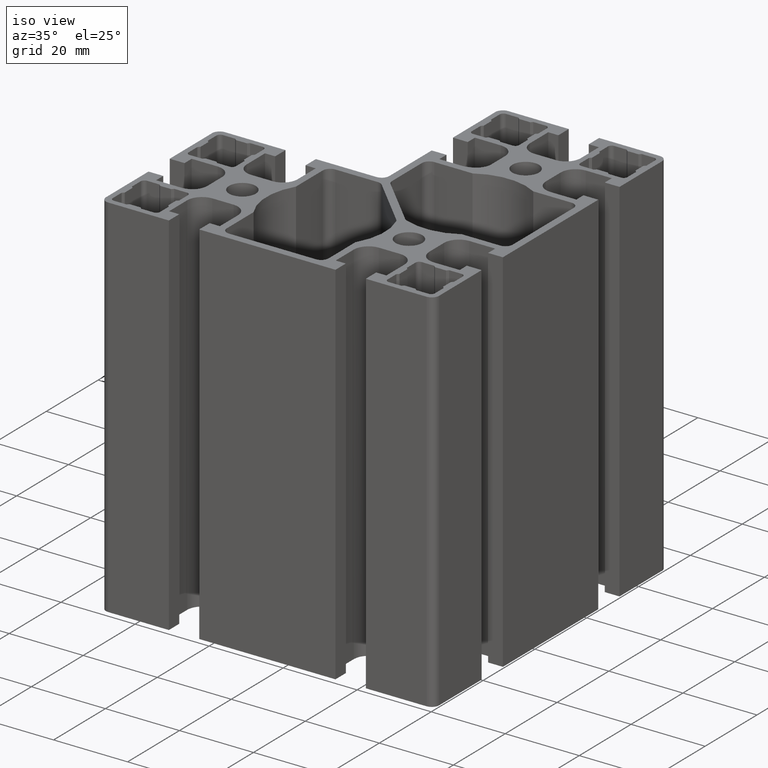
[diagram: clean part render]
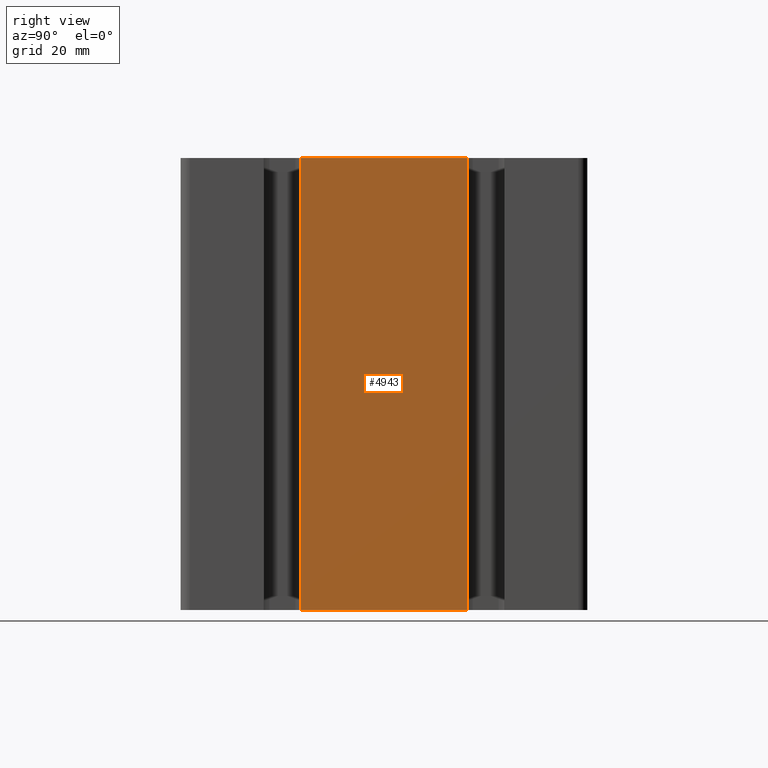
[diagram: tour spotlight — one face highlighted and labeled with its STEP entity id]
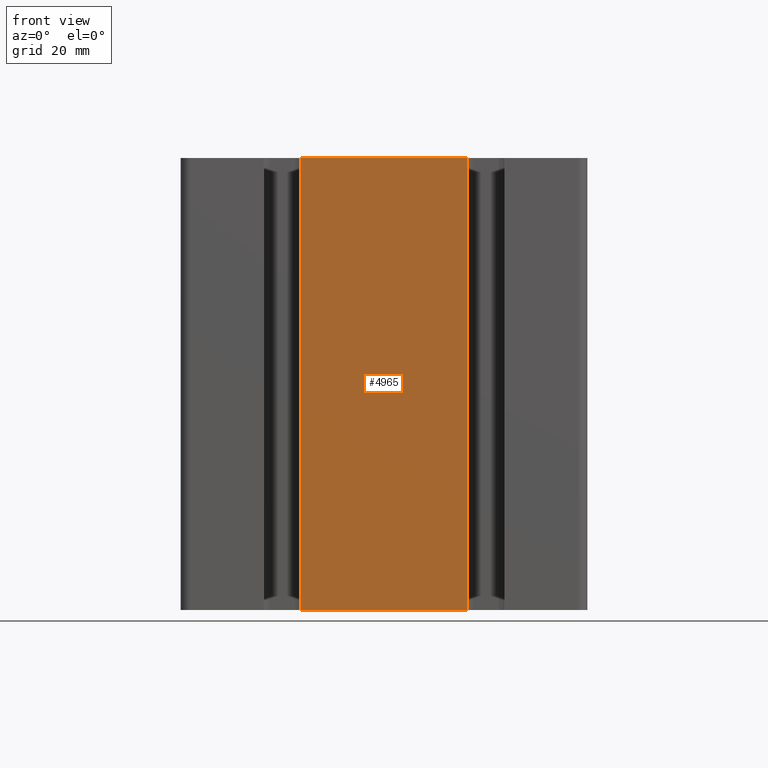
[diagram: tour spotlight — one face highlighted and labeled with its STEP entity id]
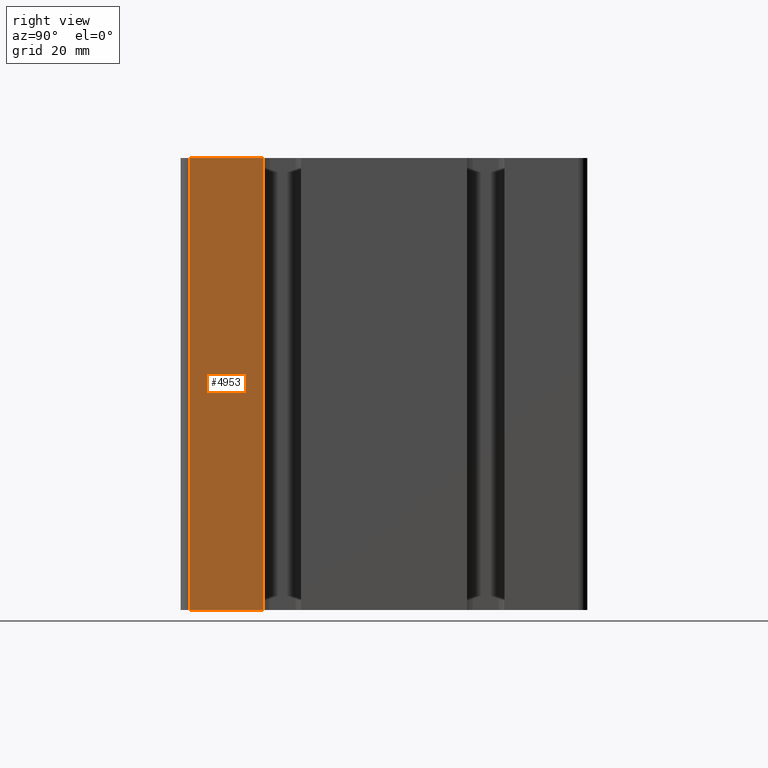
[diagram: tour spotlight — one face highlighted and labeled with its STEP entity id]
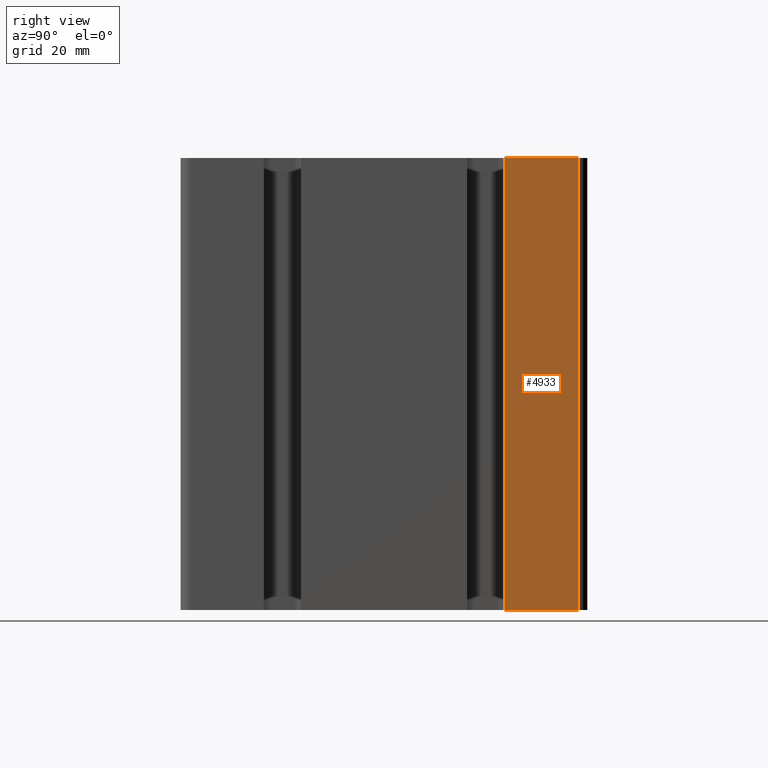
[diagram: tour spotlight — one face highlighted and labeled with its STEP entity id]
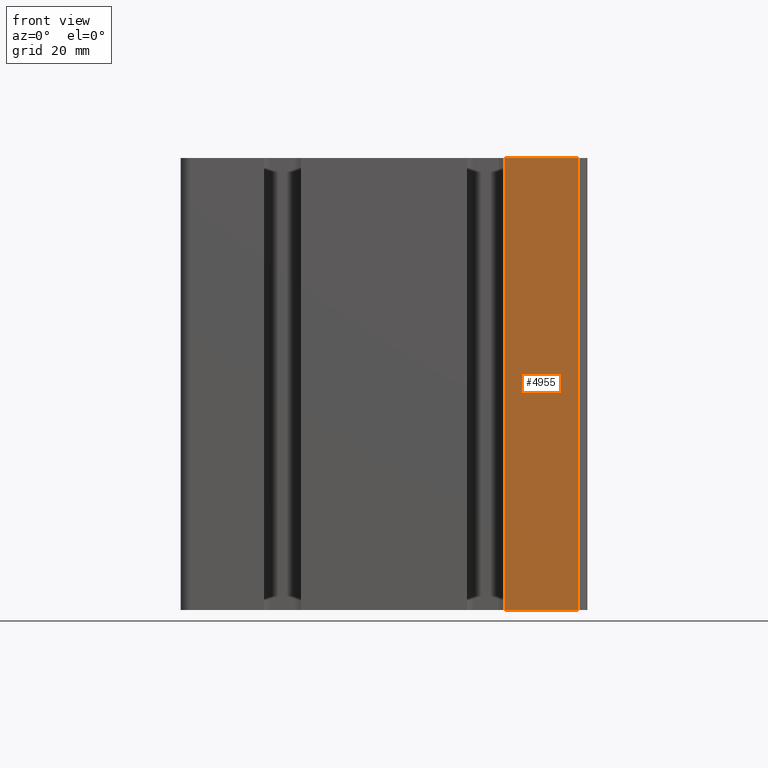
[diagram: tour spotlight — one face highlighted and labeled with its STEP entity id]
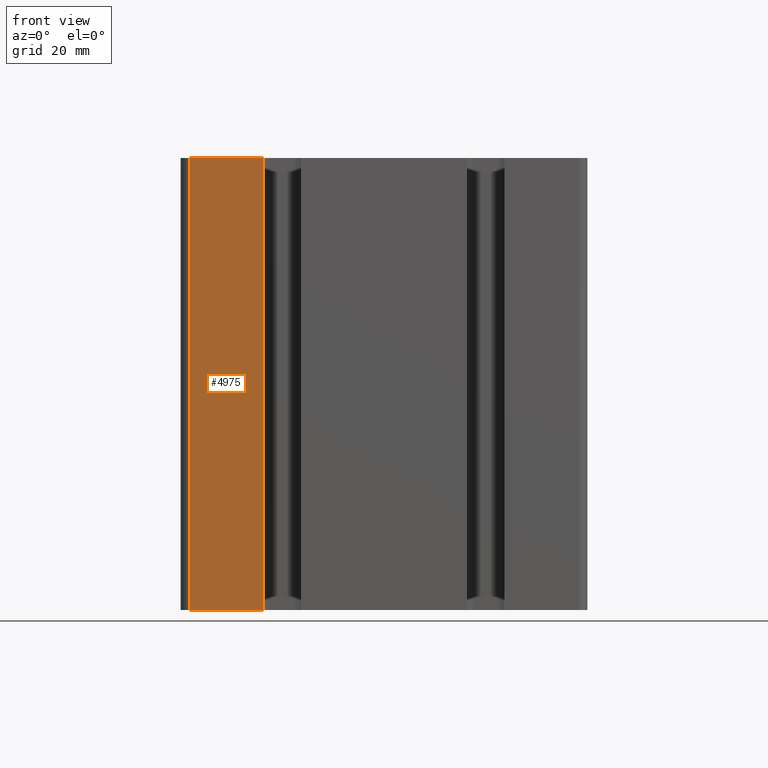
[diagram: tour spotlight — one face highlighted and labeled with its STEP entity id]
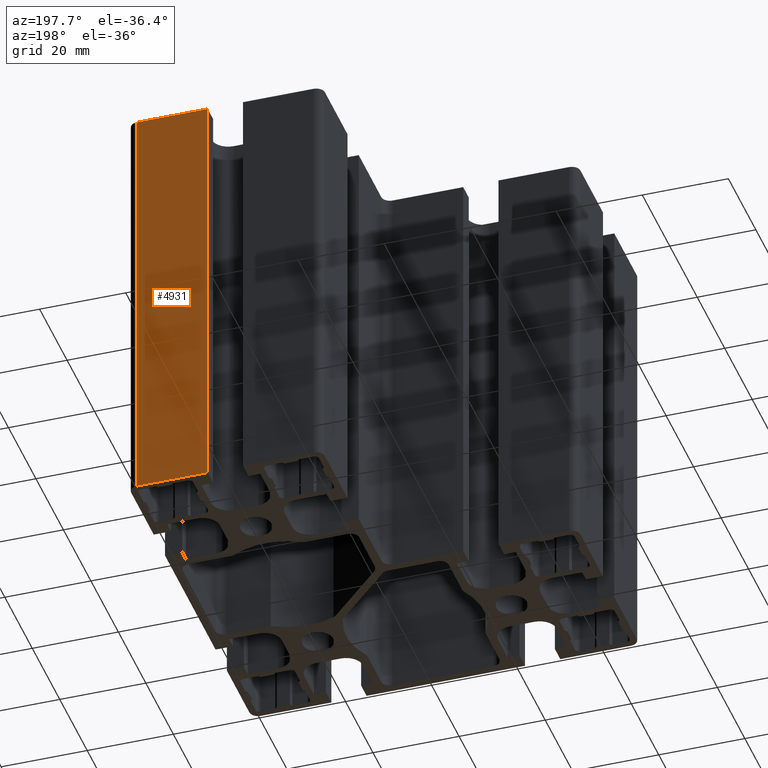
[diagram: tour spotlight — one face highlighted and labeled with its STEP entity id]
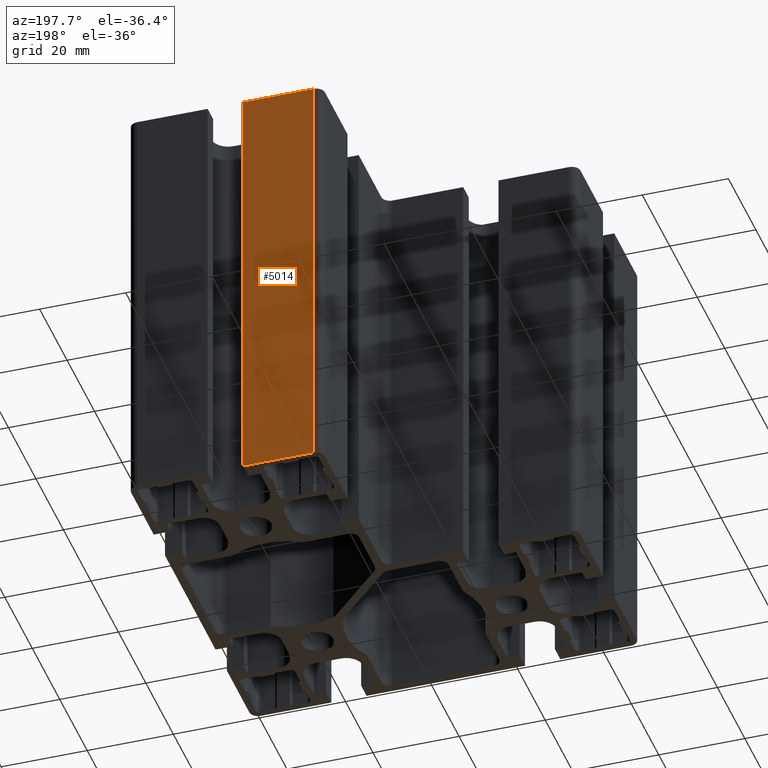
[diagram: tour spotlight — one face highlighted and labeled with its STEP entity id]
A machine part: a face-by-face anatomy tour. The part has 244 B-rep faces; the first image is the clean iso view, then the 8 largest visible faces are spotlighted one at a time (largest first), each with its STEP entity span.

Face 1 — right view, entity #4943. In plain terms, the highlighted planar face has unit normal (1, 0, 0).
Definition (entity closure, byte-faithful):
#389=FACE_OUTER_BOUND('',#646,.T.);
#646=EDGE_LOOP('',(#4058,#4059,#4060,#4061));
#1116=LINE('',#7654,#1719);
#1206=LINE('',#7879,#1809);
#1207=LINE('',#7882,#1810);
#1208=LINE('',#7883,#1811);
#1719=VECTOR('',#6229,36.8);
#1809=VECTOR('',#6407,100.);
#1810=VECTOR('',#6410,36.8);
#1811=VECTOR('',#6411,100.);
#2255=VERTEX_POINT('',#7651);
#2256=VERTEX_POINT('',#7653);
#2347=VERTEX_POINT('',#7877);
#2348=VERTEX_POINT('',#7881);
#2885=EDGE_CURVE('',#2255,#2256,#1116,.T.);
#2998=EDGE_CURVE('',#2255,#2347,#1206,.T.);
#2999=EDGE_CURVE('',#2348,#2347,#1207,.T.);
#3000=EDGE_CURVE('',#2256,#2348,#1208,.T.);
#4058=ORIENTED_EDGE('',*,*,#2998,.T.);
#4059=ORIENTED_EDGE('',*,*,#2999,.F.);
#4060=ORIENTED_EDGE('',*,*,#3000,.F.);
#4061=ORIENTED_EDGE('',*,*,#2885,.F.);
#4717=PLANE('',#5291);
#4943=ADVANCED_FACE('',(#389),#4717,.T.);
#5291=AXIS2_PLACEMENT_3D('',#7880,#6408,#6409);
#6229=DIRECTION('',(0.,-1.,0.));
#6407=DIRECTION('',(0.,0.,1.));
#6408=DIRECTION('center_axis',(1.,0.,0.));
#6409=DIRECTION('ref_axis',(0.,1.,0.));
#6410=DIRECTION('',(0.,1.,0.));
#6411=DIRECTION('',(0.,0.,1.));
#7651=CARTESIAN_POINT('',(22.5,40.9000000000015,-50.));
#7653=CARTESIAN_POINT('',(22.5,4.10000000000158,-50.));
#7654=CARTESIAN_POINT('',(22.5,4.10000000000158,-50.));
#7877=CARTESIAN_POINT('',(22.5,40.9000000000015,50.));
#7879=CARTESIAN_POINT('',(22.5,40.9000000000015,0.));
#7880=CARTESIAN_POINT('Origin',(22.5,4.10000000000158,0.));
#7881=CARTESIAN_POINT('',(22.5,4.10000000000158,50.));
#7882=CARTESIAN_POINT('',(22.5,4.10000000000158,50.));
#7883=CARTESIAN_POINT('',(22.5,4.10000000000158,0.));

Face 2 — front view, entity #4965. In plain terms, the highlighted planar face has unit normal (-0, -1, 0).
Definition (entity closure, byte-faithful):
#411=FACE_OUTER_BOUND('',#668,.T.);
#668=EDGE_LOOP('',(#4146,#4147,#4148,#4149));
#1133=LINE('',#7698,#1736);
#1245=LINE('',#7967,#1848);
#1246=LINE('',#7970,#1849);
#1247=LINE('',#7971,#1850);
#1736=VECTOR('',#6256,36.8000000000001);
#1848=VECTOR('',#6500,100.);
#1849=VECTOR('',#6503,36.8000000000001);
#1850=VECTOR('',#6504,100.);
#2277=VERTEX_POINT('',#7695);
#2278=VERTEX_POINT('',#7697);
#2369=VERTEX_POINT('',#7965);
#2370=VERTEX_POINT('',#7969);
#2907=EDGE_CURVE('',#2277,#2278,#1133,.T.);
#3042=EDGE_CURVE('',#2277,#2369,#1245,.T.);
#3043=EDGE_CURVE('',#2370,#2369,#1246,.T.);
#3044=EDGE_CURVE('',#2278,#2370,#1247,.T.);
#4146=ORIENTED_EDGE('',*,*,#3042,.T.);
#4147=ORIENTED_EDGE('',*,*,#3043,.F.);
#4148=ORIENTED_EDGE('',*,*,#3044,.F.);
#4149=ORIENTED_EDGE('',*,*,#2907,.F.);
#4734=PLANE('',#5318);
#4965=ADVANCED_FACE('',(#411),#4734,.T.);
#5318=AXIS2_PLACEMENT_3D('',#7968,#6501,#6502);
#6256=DIRECTION('',(-1.,2.41352831440251E-16,0.));
#6500=DIRECTION('',(0.,0.,1.));
#6501=DIRECTION('center_axis',(-2.41352831440251E-16,-1.,0.));
#6502=DIRECTION('ref_axis',(1.,-3.5527136788005E-16,0.));
#6503=DIRECTION('',(1.,-2.41352831440251E-16,0.));
#6504=DIRECTION('',(0.,0.,1.));
#7695=CARTESIAN_POINT('',(-4.10000000000003,-22.4999999999983,-50.));
#7697=CARTESIAN_POINT('',(-40.9000000000001,-22.4999999999983,-50.));
#7698=CARTESIAN_POINT('',(-40.9000000000001,-22.4999999999983,-50.));
#7965=CARTESIAN_POINT('',(-4.10000000000003,-22.4999999999983,50.));
#7967=CARTESIAN_POINT('',(-4.10000000000003,-22.4999999999983,0.));
#7968=CARTESIAN_POINT('Origin',(-40.9000000000001,-22.4999999999983,0.));
#7969=CARTESIAN_POINT('',(-40.9000000000001,-22.4999999999983,50.));
#7970=CARTESIAN_POINT('',(-40.9000000000001,-22.4999999999983,50.));
#7971=CARTESIAN_POINT('',(-40.9000000000001,-22.4999999999983,0.));

Face 3 — right view, entity #4953. In plain terms, the highlighted planar face has unit normal (1, 0, 0).
Definition (entity closure, byte-faithful):
#399=FACE_OUTER_BOUND('',#656,.T.);
#656=EDGE_LOOP('',(#4098,#4099,#4100,#4101));
#1124=LINE('',#7674,#1727);
#1224=LINE('',#7919,#1827);
#1225=LINE('',#7922,#1828);
#1226=LINE('',#7923,#1829);
#1727=VECTOR('',#6241,16.4);
#1827=VECTOR('',#6449,100.);
#1828=VECTOR('',#6452,16.4);
#1829=VECTOR('',#6453,100.);
#2265=VERTEX_POINT('',#7671);
#2266=VERTEX_POINT('',#7673);
#2357=VERTEX_POINT('',#7917);
#2358=VERTEX_POINT('',#7921);
#2895=EDGE_CURVE('',#2265,#2266,#1124,.T.);
#3018=EDGE_CURVE('',#2265,#2357,#1224,.T.);
#3019=EDGE_CURVE('',#2358,#2357,#1225,.T.);
#3020=EDGE_CURVE('',#2266,#2358,#1226,.T.);
#4098=ORIENTED_EDGE('',*,*,#3018,.T.);
#4099=ORIENTED_EDGE('',*,*,#3019,.F.);
#4100=ORIENTED_EDGE('',*,*,#3020,.F.);
#4101=ORIENTED_EDGE('',*,*,#2895,.F.);
#4725=PLANE('',#5303);
#4953=ADVANCED_FACE('',(#399),#4725,.T.);
#5303=AXIS2_PLACEMENT_3D('',#7920,#6450,#6451);
#6241=DIRECTION('',(0.,-1.,0.));
#6449=DIRECTION('',(0.,0.,1.));
#6450=DIRECTION('center_axis',(1.,0.,0.));
#6451=DIRECTION('ref_axis',(0.,1.,0.));
#6452=DIRECTION('',(0.,1.,0.));
#6453=DIRECTION('',(0.,0.,1.));
#7671=CARTESIAN_POINT('',(22.5,-4.09999999999835,-50.));
#7673=CARTESIAN_POINT('',(22.5,-20.4999999999983,-50.));
#7674=CARTESIAN_POINT('',(22.5,-20.4999999999983,-50.));
#7917=CARTESIAN_POINT('',(22.5,-4.09999999999835,50.));
#7919=CARTESIAN_POINT('',(22.5,-4.09999999999835,0.));
#7920=CARTESIAN_POINT('Origin',(22.5,-20.4999999999983,0.));
#7921=CARTESIAN_POINT('',(22.5,-20.4999999999983,50.));
#7922=CARTESIAN_POINT('',(22.5,-20.4999999999983,50.));
#7923=CARTESIAN_POINT('',(22.5,-20.4999999999983,0.));

Face 4 — right view, entity #4933. In plain terms, the highlighted planar face has unit normal (1, -0, 0).
Definition (entity closure, byte-faithful):
#379=FACE_OUTER_BOUND('',#636,.T.);
#636=EDGE_LOOP('',(#4018,#4019,#4020,#4021));
#1108=LINE('',#7634,#1711);
#1188=LINE('',#7839,#1791);
#1189=LINE('',#7842,#1792);
#1190=LINE('',#7843,#1793);
#1711=VECTOR('',#6217,16.4);
#1791=VECTOR('',#6365,100.);
#1792=VECTOR('',#6368,16.4);
#1793=VECTOR('',#6369,100.);
#2245=VERTEX_POINT('',#7631);
#2246=VERTEX_POINT('',#7633);
#2337=VERTEX_POINT('',#7837);
#2338=VERTEX_POINT('',#7841);
#2875=EDGE_CURVE('',#2245,#2246,#1108,.T.);
#2978=EDGE_CURVE('',#2245,#2337,#1188,.T.);
#2979=EDGE_CURVE('',#2338,#2337,#1189,.T.);
#2980=EDGE_CURVE('',#2246,#2338,#1190,.T.);
#4018=ORIENTED_EDGE('',*,*,#2978,.T.);
#4019=ORIENTED_EDGE('',*,*,#2979,.F.);
#4020=ORIENTED_EDGE('',*,*,#2980,.F.);
#4021=ORIENTED_EDGE('',*,*,#2875,.F.);
#4709=PLANE('',#5279);
#4933=ADVANCED_FACE('',(#379),#4709,.T.);
#5279=AXIS2_PLACEMENT_3D('',#7840,#6366,#6367);
#6217=DIRECTION('',(-1.08314441426844E-15,-1.,0.));
#6365=DIRECTION('',(0.,0.,1.));
#6366=DIRECTION('center_axis',(1.,-1.08314441426844E-15,0.));
#6367=DIRECTION('ref_axis',(1.06581410364015E-15,1.,0.));
#6368=DIRECTION('',(1.08314441426844E-15,1.,0.));
#6369=DIRECTION('',(0.,0.,1.));
#7631=CARTESIAN_POINT('',(22.5,65.5000000000015,-50.));
#7633=CARTESIAN_POINT('',(22.5,49.1000000000015,-50.));
#7634=CARTESIAN_POINT('',(22.5,49.1000000000015,-50.));
#7837=CARTESIAN_POINT('',(22.5,65.5000000000015,50.));
#7839=CARTESIAN_POINT('',(22.5,65.5000000000015,0.));
#7840=CARTESIAN_POINT('Origin',(22.5,49.1000000000015,0.));
#7841=CARTESIAN_POINT('',(22.5,49.1000000000015,50.));
#7842=CARTESIAN_POINT('',(22.5,49.1000000000015,50.));
#7843=CARTESIAN_POINT('',(22.5,49.1000000000015,0.));

Face 5 — front view, entity #4955. In plain terms, the highlighted planar face has unit normal (0, -1, 0).
Definition (entity closure, byte-faithful):
#401=FACE_OUTER_BOUND('',#658,.T.);
#658=EDGE_LOOP('',(#4106,#4107,#4108,#4109));
#1125=LINE('',#7678,#1728);
#1227=LINE('',#7927,#1830);
#1228=LINE('',#7930,#1831);
#1229=LINE('',#7931,#1832);
#1728=VECTOR('',#6244,16.4000000000001);
#1830=VECTOR('',#6458,100.);
#1831=VECTOR('',#6461,16.4000000000001);
#1832=VECTOR('',#6462,100.);
#2267=VERTEX_POINT('',#7675);
#2268=VERTEX_POINT('',#7677);
#2359=VERTEX_POINT('',#7925);
#2360=VERTEX_POINT('',#7929);
#2897=EDGE_CURVE('',#2267,#2268,#1125,.T.);
#3022=EDGE_CURVE('',#2267,#2359,#1227,.T.);
#3023=EDGE_CURVE('',#2360,#2359,#1228,.T.);
#3024=EDGE_CURVE('',#2268,#2360,#1229,.T.);
#4106=ORIENTED_EDGE('',*,*,#3022,.T.);
#4107=ORIENTED_EDGE('',*,*,#3023,.F.);
#4108=ORIENTED_EDGE('',*,*,#3024,.F.);
#4109=ORIENTED_EDGE('',*,*,#2897,.F.);
#4726=PLANE('',#5306);
#4955=ADVANCED_FACE('',(#401),#4726,.T.);
#5306=AXIS2_PLACEMENT_3D('',#7928,#6459,#6460);
#6244=DIRECTION('',(-1.,0.,0.));
#6458=DIRECTION('',(0.,0.,1.));
#6459=DIRECTION('center_axis',(0.,-1.,0.));
#6460=DIRECTION('ref_axis',(1.,0.,0.));
#6461=DIRECTION('',(1.,0.,0.));
#6462=DIRECTION('',(0.,0.,1.));
#7675=CARTESIAN_POINT('',(20.5,-22.4999999999983,-50.));
#7677=CARTESIAN_POINT('',(4.0999999999999,-22.4999999999983,-50.));
#7678=CARTESIAN_POINT('',(4.0999999999999,-22.4999999999983,-50.));
#7925=CARTESIAN_POINT('',(20.5,-22.4999999999983,50.));
#7927=CARTESIAN_POINT('',(20.5,-22.4999999999983,0.));
#7928=CARTESIAN_POINT('Origin',(4.0999999999999,-22.4999999999983,0.));
#7929=CARTESIAN_POINT('',(4.0999999999999,-22.4999999999983,50.));
#7930=CARTESIAN_POINT('',(4.0999999999999,-22.4999999999983,50.));
#7931=CARTESIAN_POINT('',(4.0999999999999,-22.4999999999983,0.));

Face 6 — front view, entity #4975. In plain terms, the highlighted planar face has unit normal (0, -1, 0).
Definition (entity closure, byte-faithful):
#421=FACE_OUTER_BOUND('',#678,.T.);
#678=EDGE_LOOP('',(#4186,#4187,#4188,#4189));
#1141=LINE('',#7718,#1744);
#1263=LINE('',#8007,#1866);
#1264=LINE('',#8010,#1867);
#1265=LINE('',#8011,#1868);
#1744=VECTOR('',#6268,16.4);
#1866=VECTOR('',#6542,100.);
#1867=VECTOR('',#6545,16.4);
#1868=VECTOR('',#6546,100.);
#2287=VERTEX_POINT('',#7715);
#2288=VERTEX_POINT('',#7717);
#2379=VERTEX_POINT('',#8005);
#2380=VERTEX_POINT('',#8009);
#2917=EDGE_CURVE('',#2287,#2288,#1141,.T.);
#3062=EDGE_CURVE('',#2287,#2379,#1263,.T.);
#3063=EDGE_CURVE('',#2380,#2379,#1264,.T.);
#3064=EDGE_CURVE('',#2288,#2380,#1265,.T.);
#4186=ORIENTED_EDGE('',*,*,#3062,.T.);
#4187=ORIENTED_EDGE('',*,*,#3063,.F.);
#4188=ORIENTED_EDGE('',*,*,#3064,.F.);
#4189=ORIENTED_EDGE('',*,*,#2917,.F.);
#4742=PLANE('',#5330);
#4975=ADVANCED_FACE('',(#421),#4742,.T.);
#5330=AXIS2_PLACEMENT_3D('',#8008,#6543,#6544);
#6268=DIRECTION('',(-1.,-2.70786103567112E-16,0.));
#6542=DIRECTION('',(0.,0.,1.));
#6543=DIRECTION('center_axis',(2.70786103567112E-16,-1.,0.));
#6544=DIRECTION('ref_axis',(1.,3.5527136788005E-16,0.));
#6545=DIRECTION('',(1.,2.70786103567112E-16,0.));
#6546=DIRECTION('',(0.,0.,1.));
#7715=CARTESIAN_POINT('',(-49.1,-22.4999999999983,-50.));
#7717=CARTESIAN_POINT('',(-65.5,-22.4999999999983,-50.));
#7718=CARTESIAN_POINT('',(-65.5,-22.4999999999983,-50.));
#8005=CARTESIAN_POINT('',(-49.1,-22.4999999999983,50.));
#8007=CARTESIAN_POINT('',(-49.1,-22.4999999999983,0.));
#8008=CARTESIAN_POINT('Origin',(-65.5,-22.4999999999983,0.));
#8009=CARTESIAN_POINT('',(-65.5,-22.4999999999983,50.));
#8010=CARTESIAN_POINT('',(-65.5,-22.4999999999983,50.));
#8011=CARTESIAN_POINT('',(-65.5,-22.4999999999983,0.));

Face 7 — auxiliary view, entity #4931. In plain terms, the highlighted planar face has unit normal (0, 1, 0).
Definition (entity closure, byte-faithful):
#377=FACE_OUTER_BOUND('',#634,.T.);
#634=EDGE_LOOP('',(#4010,#4011,#4012,#4013));
#1107=LINE('',#7630,#1710);
#1185=LINE('',#7831,#1788);
#1186=LINE('',#7834,#1789);
#1187=LINE('',#7835,#1790);
#1710=VECTOR('',#6214,16.4);
#1788=VECTOR('',#6356,100.);
#1789=VECTOR('',#6359,16.4);
#1790=VECTOR('',#6360,100.);
#2243=VERTEX_POINT('',#7627);
#2244=VERTEX_POINT('',#7629);
#2335=VERTEX_POINT('',#7829);
#2336=VERTEX_POINT('',#7833);
#2873=EDGE_CURVE('',#2243,#2244,#1107,.T.);
#2974=EDGE_CURVE('',#2243,#2335,#1185,.T.);
#2975=EDGE_CURVE('',#2336,#2335,#1186,.T.);
#2976=EDGE_CURVE('',#2244,#2336,#1187,.T.);
#4010=ORIENTED_EDGE('',*,*,#2974,.T.);
#4011=ORIENTED_EDGE('',*,*,#2975,.F.);
#4012=ORIENTED_EDGE('',*,*,#2976,.F.);
#4013=ORIENTED_EDGE('',*,*,#2873,.F.);
#4708=PLANE('',#5276);
#4931=ADVANCED_FACE('',(#377),#4708,.T.);
#5276=AXIS2_PLACEMENT_3D('',#7832,#6357,#6358);
#6214=DIRECTION('',(1.,0.,0.));
#6356=DIRECTION('',(0.,0.,1.));
#6357=DIRECTION('center_axis',(0.,1.,0.));
#6358=DIRECTION('ref_axis',(-1.,0.,0.));
#6359=DIRECTION('',(-1.,0.,0.));
#6360=DIRECTION('',(0.,0.,1.));
#7627=CARTESIAN_POINT('',(4.10000000000001,67.5000000000016,-50.));
#7629=CARTESIAN_POINT('',(20.5,67.5000000000016,-50.));
#7630=CARTESIAN_POINT('',(20.5,67.5000000000016,-50.));
#7829=CARTESIAN_POINT('',(4.10000000000001,67.5000000000016,50.));
#7831=CARTESIAN_POINT('',(4.10000000000001,67.5000000000016,0.));
#7832=CARTESIAN_POINT('Origin',(20.5,67.5000000000016,0.));
#7833=CARTESIAN_POINT('',(20.5,67.5000000000016,50.));
#7834=CARTESIAN_POINT('',(20.5,67.5000000000016,50.));
#7835=CARTESIAN_POINT('',(20.5,67.5000000000016,0.));

Face 8 — auxiliary view, entity #5014. In plain terms, the highlighted planar face has unit normal (0, 1, 0).
Definition (entity closure, byte-faithful):
#460=FACE_OUTER_BOUND('',#717,.T.);
#717=EDGE_LOOP('',(#4342,#4343,#4344,#4345));
#1099=LINE('',#7610,#1702);
#1169=LINE('',#7796,#1772);
#1330=LINE('',#8163,#1933);
#1331=LINE('',#8165,#1934);
#1702=VECTOR('',#6202,16.4000000000001);
#1772=VECTOR('',#6320,100.);
#1933=VECTOR('',#6709,100.);
#1934=VECTOR('',#6712,16.4000000000001);
#2233=VERTEX_POINT('',#7608);
#2234=VERTEX_POINT('',#7609);
#2326=VERTEX_POINT('',#7795);
#2418=VERTEX_POINT('',#8161);
#2863=EDGE_CURVE('',#2233,#2234,#1099,.T.);
#2956=EDGE_CURVE('',#2326,#2234,#1169,.T.);
#3140=EDGE_CURVE('',#2233,#2418,#1330,.T.);
#3141=EDGE_CURVE('',#2326,#2418,#1331,.T.);
#4342=ORIENTED_EDGE('',*,*,#3140,.T.);
#4343=ORIENTED_EDGE('',*,*,#3141,.F.);
#4344=ORIENTED_EDGE('',*,*,#2956,.T.);
#4345=ORIENTED_EDGE('',*,*,#2863,.F.);
#4770=PLANE('',#5380);
#5014=ADVANCED_FACE('',(#460),#4770,.T.);
#5380=AXIS2_PLACEMENT_3D('',#8164,#6710,#6711);
#6202=DIRECTION('',(1.,0.,0.));
#6320=DIRECTION('',(0.,0.,-1.));
#6709=DIRECTION('',(0.,0.,1.));
#6710=DIRECTION('center_axis',(0.,1.,0.));
#6711=DIRECTION('ref_axis',(-1.,0.,0.));
#6712=DIRECTION('',(-1.,0.,0.));
#7608=CARTESIAN_POINT('',(-20.5000000000001,67.5000000000016,-50.));
#7609=CARTESIAN_POINT('',(-4.10000000000004,67.5000000000016,-50.));
#7610=CARTESIAN_POINT('',(-4.10000000000004,67.5000000000016,-50.));
#7795=CARTESIAN_POINT('',(-4.10000000000004,67.5000000000016,50.));
#7796=CARTESIAN_POINT('',(-4.10000000000004,67.5000000000016,0.));
#8161=CARTESIAN_POINT('',(-20.5000000000001,67.5000000000016,50.));
#8163=CARTESIAN_POINT('',(-20.5000000000001,67.5000000000016,0.));
#8164=CARTESIAN_POINT('Origin',(-4.10000000000004,67.5000000000016,0.));
#8165=CARTESIAN_POINT('',(-4.10000000000004,67.5000000000016,50.));